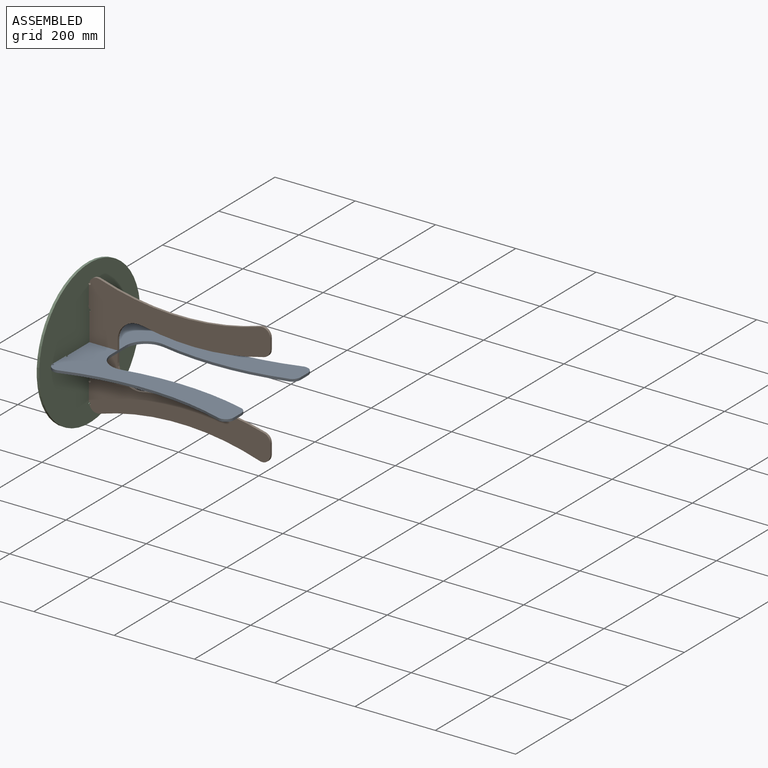
[diagram: assembled view]
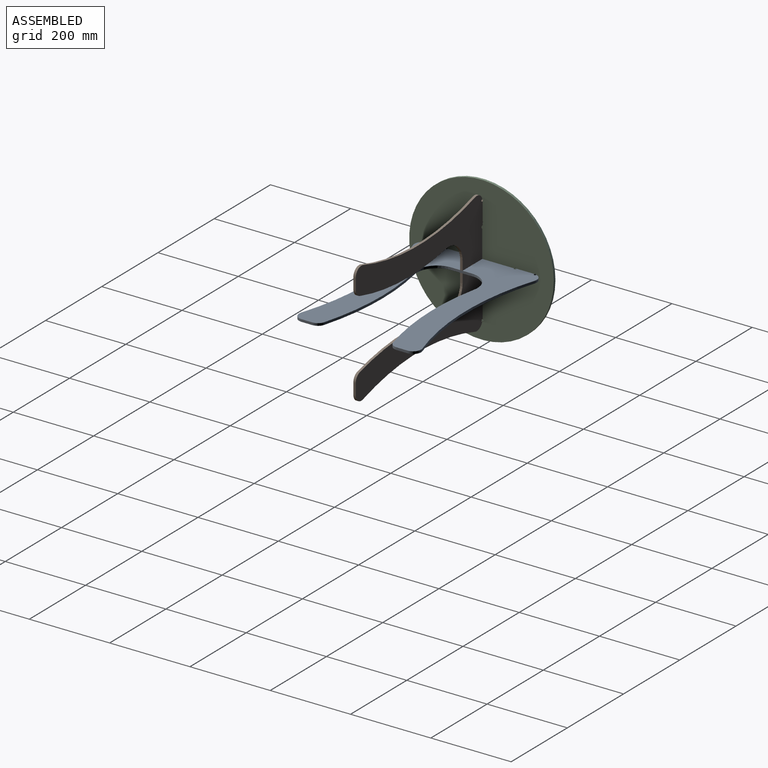
[diagram: assembled view, second angle]
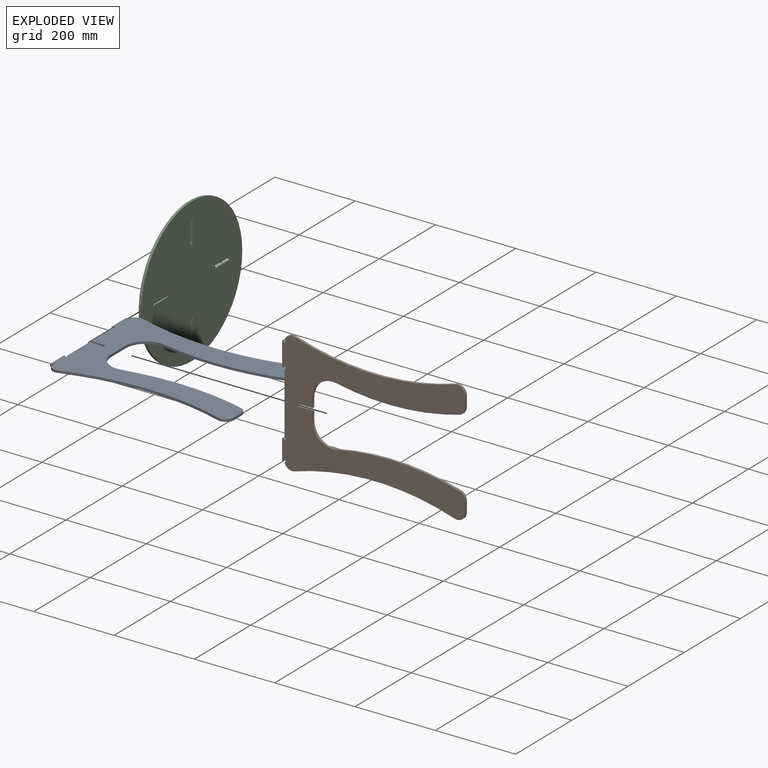
[diagram: exploded view]
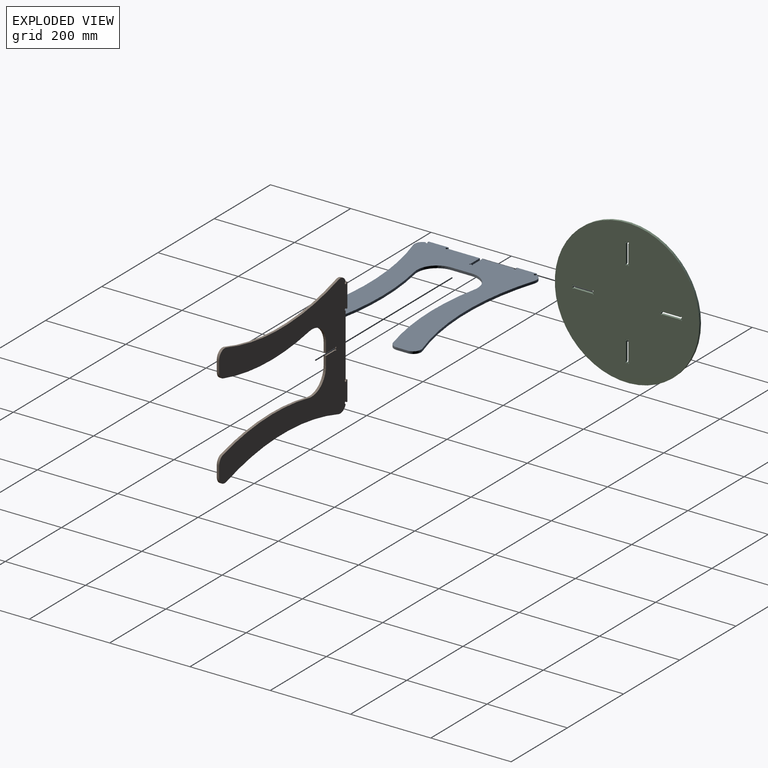
[diagram: exploded view, second angle]
ASSEMBLY  parts=3 mates=2
PART A: 34 faces, bbox 456x304.4x6 mm
  f0: plane 26.97x6mm, normal (1,0,0), area 161.8mm2, adj f24,f25,f28,f33
  f1: cylinder r=650mm len=398.59mm, axis (0,0,1), area 2430.7mm2, adj f24,f25,f28,f29
  f2: cylinder r=3mm len=6mm, axis (0,0,1), area 84.8mm2, adj f3,f24,f25,f29
  f3: plane 6x3mm, normal (0,1,0), area 18mm2, adj f2,f4,f24,f25
  f4: plane 50x6mm, normal (-1,0,0), area 300mm2, adj f3,f5,f24,f25
  f5: plane 6x3mm, normal (0,-1,0), area 18mm2, adj f4,f6,f24,f25
  f6: cylinder r=3mm len=6mm, axis (0,0,1), area 84.8mm2, adj f5,f7,f24,f25
  f7: plane 79x6mm, normal (-1,0,0), area 474mm2, adj f6,f8,f24,f25
  f8: plane 33.5x6mm, normal (0,-1,0), area 201mm2, adj f7,f9,f24,f25
  f9: cylinder r=1.5mm len=6mm, axis (0,0,1), area 42.4mm2, adj f8,f10,f24,f25
  f10: plane 6x3mm, normal (-1,0,0), area 18mm2, adj f9,f11,f24,f25
  f11: cylinder r=1.5mm len=6mm, axis (0,0,1), area 42.4mm2, adj f10,f12,f24,f25
  f12: plane 33.5x6mm, normal (0,1,0), area 201mm2, adj f11,f13,f24,f25
  f13: plane 79x6mm, normal (-1,0,0), area 474mm2, adj f12,f14,f24,f25
  f14: cylinder r=3mm len=6mm, axis (0,0,1), area 84.8mm2, adj f13,f15,f24,f25
  f15: plane 6x3mm, normal (0,1,0), area 18mm2, adj f14,f16,f24,f25
  f16: plane 50x6mm, normal (-1,0,0), area 300mm2, adj f15,f17,f24,f25
  f17: plane 6x3mm, normal (0,-1,0), area 18mm2, adj f16,f18,f24,f25
  f18: cylinder r=3mm len=6mm, axis (0,0,1), area 84.8mm2, adj f17,f24,f25,f30
  f19: cylinder r=650mm len=398.59mm, axis (0,0,1), area 2430.7mm2, adj f24,f25,f30,f31
  f20: plane 26.97x6mm, normal (1,0,0), area 161.8mm2, adj f24,f25,f31,f32
  f21: cylinder r=650mm len=305.4mm, axis (0,0,1), area 1850.9mm2, adj f24,f25,f26,f32
  f22: plane 51.51x6mm, normal (1,0,0), area 309mm2, adj f24,f25,f26,f27
  f23: cylinder r=650mm len=305.4mm, axis (0,0,1), area 1850.9mm2, adj f24,f25,f27,f33
  f24: plane 456x304.45mm, normal (0,0,-1), area 67135mm2, adj f0,f1,f2,f3,f4,f5,f6,f7
  f25: plane 456x304.45mm, normal (0,0,1), area 67135mm2, adj f0,f1,f2,f3,f4,f5,f6,f7
  f26: cylinder r=50mm len=60mm, axis (0,0,1), area 531.6mm2, adj f21,f22,f24,f25
  f27: cylinder r=50mm len=60mm, axis (0,0,1), area 531.6mm2, adj f22,f23,f24,f25
  f28: cylinder r=20mm len=26.12mm, axis (0,0,1), area 225.8mm2, adj f0,f1,f24,f25
  f29: cylinder r=20mm len=25.29mm, axis (0,0,1), area 190.8mm2, adj f1,f2,f24,f25
  f30: cylinder r=20mm len=25.29mm, axis (0,0,1), area 190.8mm2, adj f18,f19,f24,f25
  f31: cylinder r=20mm len=26.12mm, axis (0,0,1), area 225.8mm2, adj f19,f20,f24,f25
  f32: cylinder r=20mm len=19.26mm, axis (0,0,1), area 155.7mm2, adj f20,f21,f24,f25
  f33: cylinder r=20mm len=19.26mm, axis (0,0,1), area 155.7mm2, adj f0,f23,f24,f25
PART B: 34 faces, bbox 456x304.5x6 mm
  f0: plane 6x3mm, normal (-1,0,0), area 18mm2, adj f1,f23,f24,f25
  f1: cylinder r=1.5mm len=6mm, axis (0,0,1), area 42.4mm2, adj f0,f2,f24,f25
  f2: plane 33.5x6mm, normal (0,1,0), area 201mm2, adj f1,f3,f24,f25
  f3: plane 22.63x6mm, normal (-1,0,0), area 135.8mm2, adj f2,f24,f25,f26
  f4: cylinder r=650mm len=305.42mm, axis (0,0,1), area 1851.1mm2, adj f24,f25,f26,f28
  f5: plane 26.97x6mm, normal (-1,0,0), area 161.8mm2, adj f24,f25,f28,f29
  f6: cylinder r=650mm len=398.59mm, axis (0,0,1), area 2430.7mm2, adj f24,f25,f29,f30
  f7: cylinder r=3mm len=6mm, axis (0,0,1), area 84.8mm2, adj f8,f24,f25,f30
  f8: plane 6x3mm, normal (0,-1,0), area 18mm2, adj f7,f9,f24,f25
  f9: plane 50.14x6mm, normal (1,0,0), area 300.9mm2, adj f8,f10,f24,f25
  f10: plane 6x3mm, normal (0,1,0), area 18mm2, adj f9,f11,f24,f25
  f11: cylinder r=3mm len=6mm, axis (0,0,1), area 84.8mm2, adj f10,f12,f24,f25
  f12: plane 154x6mm, normal (1,0,0), area 924mm2, adj f11,f13,f24,f25
  f13: cylinder r=3mm len=6mm, axis (0,0,1), area 84.8mm2, adj f12,f14,f24,f25
  f14: plane 6x3.01mm, normal (0,-1,0), area 18.1mm2, adj f13,f15,f24,f25
  f15: plane 59.93x6mm, normal (1,0,0), area 359.6mm2, adj f14,f16,f24,f25
  f16: plane 6x3mm, normal (0,1,0), area 18mm2, adj f15,f17,f24,f25
  f17: cylinder r=3mm len=6mm, axis (0,0,1), area 84.8mm2, adj f16,f24,f25,f31
  f18: cylinder r=650mm len=398.59mm, axis (0,0,1), area 2430.7mm2, adj f24,f25,f31,f32
  f19: plane 26.96x6mm, normal (-1,0,0), area 161.8mm2, adj f24,f25,f32,f33
  f20: cylinder r=650mm len=305.37mm, axis (0,0,1), area 1850.7mm2, adj f24,f25,f27,f33
  f21: plane 22.89x6mm, normal (-1,0,0), area 137.3mm2, adj f22,f24,f25,f27
  f22: plane 33.5x6mm, normal (0,-1,0), area 201mm2, adj f21,f23,f24,f25
  f23: cylinder r=1.5mm len=6mm, axis (0,0,1), area 42.4mm2, adj f0,f22,f24,f25
  f24: plane 456.01x304.52mm, normal (0,0,-1), area 67214.2mm2, adj f0,f1,f2,f3,f4,f5,f6,f7
  f25: plane 456.01x304.52mm, normal (0,0,1), area 67214.2mm2, adj f0,f1,f2,f3,f4,f5,f6,f7
  f26: cylinder r=50mm len=59.98mm, axis (0,0,1), area 531.5mm2, adj f3,f4,f24,f25
  f27: cylinder r=50mm len=60.01mm, axis (0,0,1), area 531.7mm2, adj f20,f21,f24,f25
  f28: cylinder r=20mm len=19.26mm, axis (0,0,1), area 155.7mm2, adj f4,f5,f24,f25
  f29: cylinder r=20mm len=26.12mm, axis (0,0,1), area 225.8mm2, adj f5,f6,f24,f25
  f30: cylinder r=20mm len=25.29mm, axis (0,0,1), area 190.8mm2, adj f6,f7,f24,f25
  f31: cylinder r=20mm len=25.29mm, axis (0,0,1), area 190.8mm2, adj f17,f18,f24,f25
  f32: cylinder r=20mm len=26.12mm, axis (0,0,1), area 225.8mm2, adj f18,f19,f24,f25
  f33: cylinder r=20mm len=19.26mm, axis (0,0,1), area 155.7mm2, adj f19,f20,f24,f25
PART C: 35 faces, bbox 360x360x6 mm
  f0: cylinder r=1.5mm len=6mm, axis (0,0,1), area 42.4mm2, adj f1,f32,f33,f34
  f1: plane 6x3mm, normal (0,-1,0), area 18mm2, adj f0,f2,f33,f34
  f2: cylinder r=1.5mm len=6mm, axis (0,0,1), area 42.4mm2, adj f1,f3,f33,f34
  f3: plane 47x6mm, normal (-1,0,0), area 282mm2, adj f2,f4,f33,f34
  f4: cylinder r=1.5mm len=6mm, axis (0,0,1), area 42.4mm2, adj f3,f5,f33,f34
  f5: plane 6x3mm, normal (0,1,0), area 18mm2, adj f4,f6,f33,f34
  f6: cylinder r=1.5mm len=6mm, axis (0,0,1), area 42.4mm2, adj f5,f32,f33,f34
  f7: cylinder r=1.5mm len=6mm, axis (0,0,1), area 42.4mm2, adj f8,f28,f33,f34
  f8: plane 6x3mm, normal (1,0,0), area 18mm2, adj f7,f9,f33,f34
  f9: cylinder r=1.5mm len=6mm, axis (0,0,1), area 42.4mm2, adj f8,f10,f33,f34
  f10: plane 47x6mm, normal (0,-1,0), area 282mm2, adj f9,f11,f33,f34
  f11: cylinder r=1.5mm len=6mm, axis (0,0,1), area 42.4mm2, adj f10,f12,f33,f34
  f12: plane 6x3mm, normal (-1,0,0), area 18mm2, adj f11,f13,f33,f34
  f13: cylinder r=1.5mm len=6mm, axis (0,0,1), area 42.4mm2, adj f12,f28,f33,f34
  f14: cylinder r=1.5mm len=6mm, axis (0,0,1), area 42.4mm2, adj f15,f29,f33,f34
  f15: plane 6x3mm, normal (0,1,0), area 18mm2, adj f14,f16,f33,f34
  f16: cylinder r=1.5mm len=6mm, axis (0,0,1), area 42.4mm2, adj f15,f17,f33,f34
  f17: plane 47x6mm, normal (1,0,0), area 282mm2, adj f16,f18,f33,f34
  f18: cylinder r=1.5mm len=6mm, axis (0,0,1), area 42.4mm2, adj f17,f19,f33,f34
  f19: plane 6x3mm, normal (0,-1,0), area 18mm2, adj f18,f20,f33,f34
  f20: cylinder r=1.5mm len=6mm, axis (0,0,1), area 42.4mm2, adj f19,f29,f33,f34
  f21: cylinder r=1.5mm len=6mm, axis (0,0,1), area 42.4mm2, adj f22,f31,f33,f34
  f22: plane 6x3mm, normal (1,0,0), area 18mm2, adj f21,f23,f33,f34
  f23: cylinder r=1.5mm len=6mm, axis (0,0,1), area 42.4mm2, adj f22,f24,f33,f34
  f24: plane 47x6mm, normal (0,-1,0), area 282mm2, adj f23,f25,f33,f34
  f25: cylinder r=1.5mm len=6mm, axis (0,0,1), area 42.4mm2, adj f24,f26,f33,f34
  f26: plane 6x3mm, normal (-1,0,0), area 18mm2, adj f25,f27,f33,f34
  f27: cylinder r=1.5mm len=6mm, axis (0,0,1), area 42.4mm2, adj f26,f31,f33,f34
  f28: plane 47x6mm, normal (0,1,0), area 282mm2, adj f7,f13,f33,f34
  f29: plane 47x6mm, normal (-1,0,0), area 282mm2, adj f14,f20,f33,f34
  f30: cylinder r=180mm len=360mm, axis (0,0,1), area 6785.8mm2, adj f33,f34
  f31: plane 47x6mm, normal (0,1,0), area 282mm2, adj f21,f27,f33,f34
  f32: plane 47x6mm, normal (1,0,0), area 282mm2, adj f0,f6,f33,f34
  f33: plane 360x360mm, normal (0,0,-1), area 100502.8mm2, adj f0,f1,f2,f3,f4,f5,f6,f7
  f34: plane 360x360mm, normal (0,0,1), area 100502.8mm2, adj f0,f1,f2,f3,f4,f5,f6,f7
PLACE A t=(-360.1,-295.89,-59.71)mm
PLACE B rot(axis=(0,0.71,0.71),180deg) t=(-1935.85,-202.89,-62.59)mm
PLACE C rot(axis=(0.58,0.58,0.58),120deg) t=(-1566.83,127.58,-62.71)mm
MATE fastened A.f10 <-> B.f0  axis (-1,0,0) through (-1380.33,-205.89,-62.71)mm
MATE fastened A.f15 <-> C.f26  axis (0,1,0) through (-1419.83,-290.89,-62.71)mm
